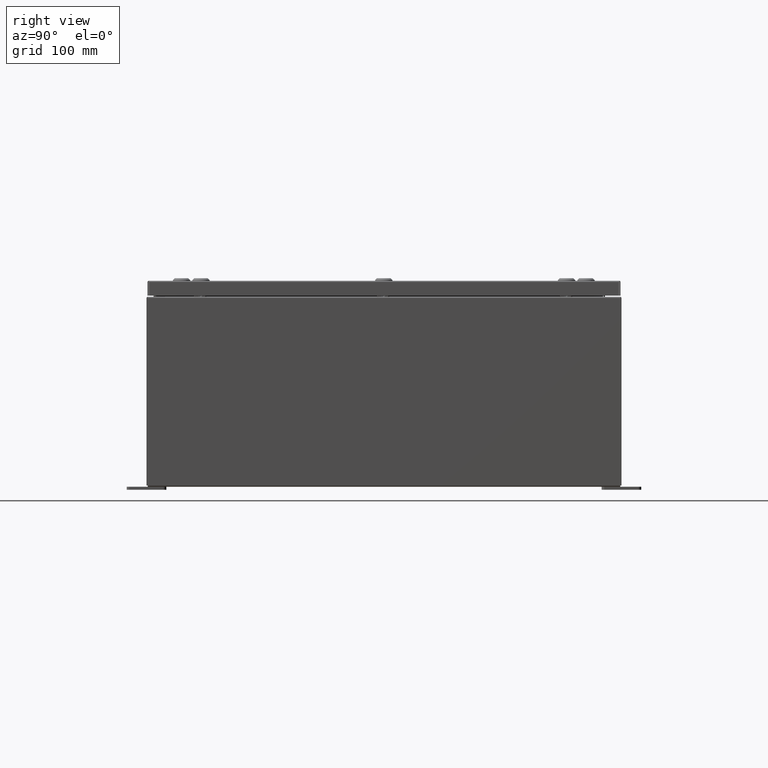
[diagram: clean part render]
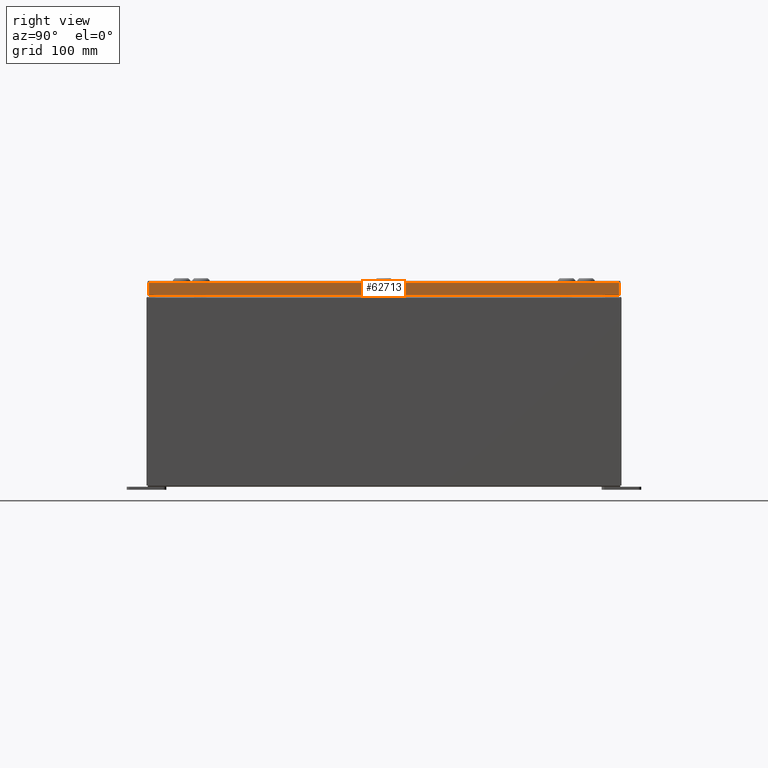
[diagram: same view with one face highlighted and labeled with its STEP entity id]
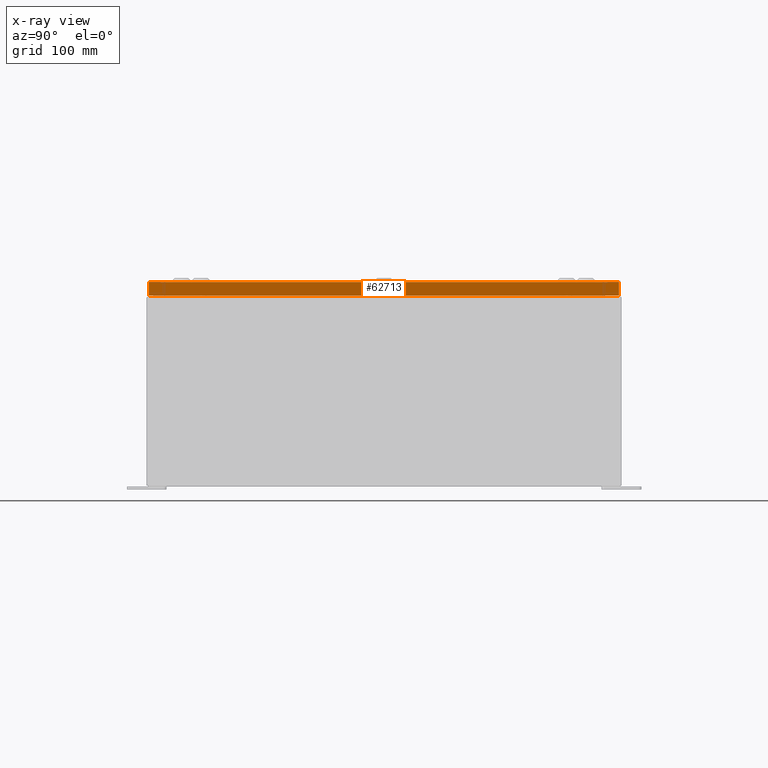
[diagram: x-ray of the same camera — body ghosted, the highlighted face saturated]
A machine part, right view. The second image highlights one B-rep face of the part: STEP entity #62713.
The next image is the same camera in x-ray: the body ghosted, the highlighted face saturated — about 0% of this face is hidden behind the body in this view.
In plain terms, the highlighted planar face has unit normal (1, 0, 0).
Its self-contained STEP definition (entity closure, byte-faithful):
#492 = CARTESIAN_POINT ( 'NONE',  ( 14.93749999999999800, -14.84865786437626800, -0.08770000000000008300 ) ) ;
#6877 = AXIS2_PLACEMENT_3D ( 'NONE', #65276, #14713, #50089 ) ;
#6898 = LINE ( 'NONE', #39073, #44000 ) ;
#6952 = VECTOR ( 'NONE', #45486, 39.37007874015748100 ) ;
#7457 = ORIENTED_EDGE ( 'NONE', *, *, #20957, .T. ) ;
#8691 = DIRECTION ( 'NONE',  ( 0.0000000000000000000, -1.000000000000000000, 0.0000000000000000000 ) ) ;
#9636 = PLANE ( 'NONE',  #6877 ) ;
#9956 = ORIENTED_EDGE ( 'NONE', *, *, #18309, .F. ) ;
#9971 = CARTESIAN_POINT ( 'NONE',  ( 14.93750000000000000, 14.84865786437627300, -0.9376999999999997600 ) ) ;
#10630 = LINE ( 'NONE', #54659, #49373 ) ;
#14713 = DIRECTION ( 'NONE',  ( 1.000000000000000000, 0.0000000000000000000, 2.532419924601866100E-015 ) ) ;
#15928 = CARTESIAN_POINT ( 'NONE',  ( 14.93749999999999800, 14.84865786437626800, -0.08770000000000008300 ) ) ;
#17677 = VERTEX_POINT ( 'NONE', #65683 ) ;
#18309 = EDGE_CURVE ( 'NONE', #44115, #17677, #10630, .T. ) ;
#20957 = EDGE_CURVE ( 'NONE', #46222, #61856, #43622, .T. ) ;
#28760 = CARTESIAN_POINT ( 'NONE',  ( 14.93749999999999800, 0.0000000000000000000, -0.08770000000000008300 ) ) ;
#30205 = VECTOR ( 'NONE', #8691, 39.37007874015748100 ) ;
#30844 = CARTESIAN_POINT ( 'NONE',  ( 14.93749999999999800, -14.84865786437626800, -0.07469999999999980800 ) ) ;
#33323 = ORIENTED_EDGE ( 'NONE', *, *, #40207, .F. ) ;
#39073 = CARTESIAN_POINT ( 'NONE',  ( 14.93749999999999800, 14.84865786437626900, 1.417764599604241100E-013 ) ) ;
#40207 = EDGE_CURVE ( 'NONE', #17677, #61856, #60814, .T. ) ;
#41352 = EDGE_CURVE ( 'NONE', #44115, #46222, #6898, .T. ) ;
#43622 = LINE ( 'NONE', #28760, #30205 ) ;
#44000 = VECTOR ( 'NONE', #44366, 39.37007874015748100 ) ;
#44115 = VERTEX_POINT ( 'NONE', #9971 ) ;
#44366 = DIRECTION ( 'NONE',  ( -2.532419924601866100E-015, -6.982962677686265900E-015, 1.000000000000000000 ) ) ;
#45486 = DIRECTION ( 'NONE',  ( -2.532419924601866100E-015, -6.982962677686265900E-015, 1.000000000000000000 ) ) ;
#46222 = VERTEX_POINT ( 'NONE', #15928 ) ;
#49373 = VECTOR ( 'NONE', #64935, 39.37007874015748100 ) ;
#50089 = DIRECTION ( 'NONE',  ( 2.532419924601866100E-015, 0.0000000000000000000, -1.000000000000000000 ) ) ;
#53409 = EDGE_LOOP ( 'NONE', ( #33323, #9956, #58289, #7457 ) ) ;
#54659 = CARTESIAN_POINT ( 'NONE',  ( 14.93750000000000000, -14.93749999999999800, -0.9376999999999997600 ) ) ;
#58289 = ORIENTED_EDGE ( 'NONE', *, *, #41352, .T. ) ;
#60814 = LINE ( 'NONE', #30844, #6952 ) ;
#61751 = FACE_OUTER_BOUND ( 'NONE', #53409, .T. ) ;
#61856 = VERTEX_POINT ( 'NONE', #492 ) ;
#62713 = ADVANCED_FACE ( 'NONE', ( #61751 ), #9636, .T. ) ;
#64935 = DIRECTION ( 'NONE',  ( 0.0000000000000000000, -1.000000000000000000, 0.0000000000000000000 ) ) ;
#65276 = CARTESIAN_POINT ( 'NONE',  ( 14.93749999999999800, 0.0000000000000000000, 3.808883627975194400E-014 ) ) ;
#65683 = CARTESIAN_POINT ( 'NONE',  ( 14.93750000000000000, -14.84865786437626100, -0.9376999999999997600 ) ) ;